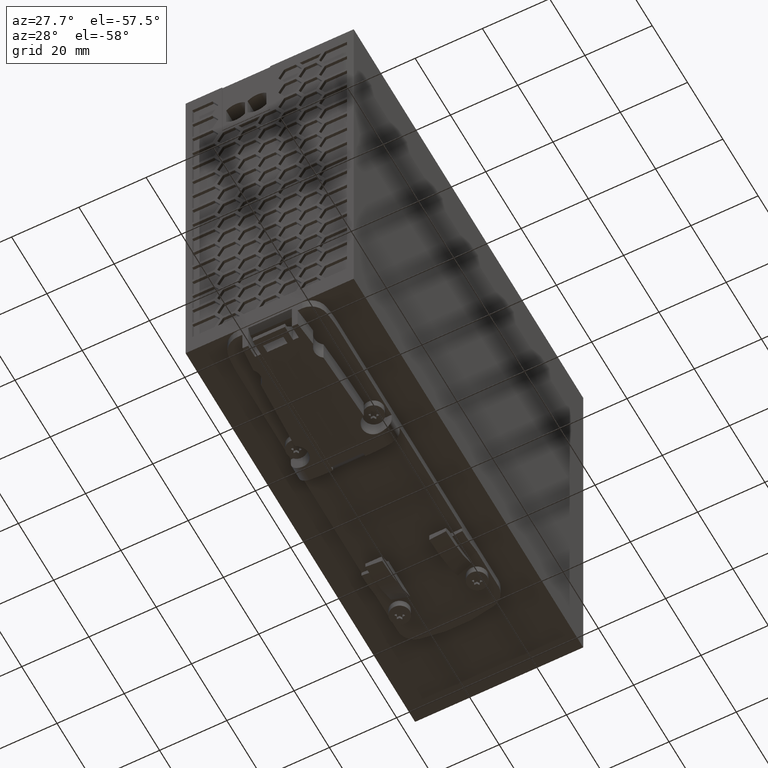
[diagram: clean part render]
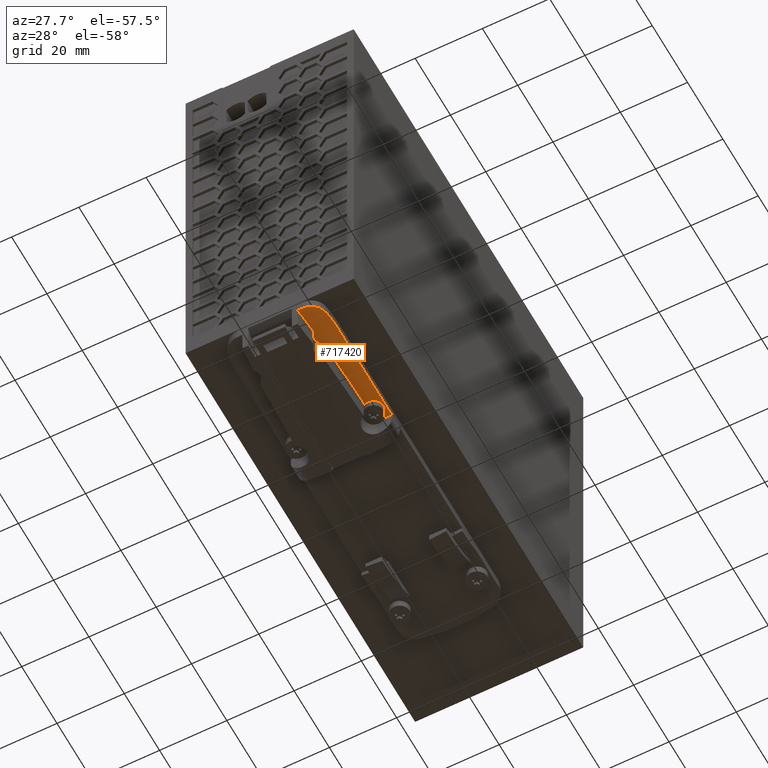
[diagram: same view with one face highlighted and labeled with its STEP entity id]
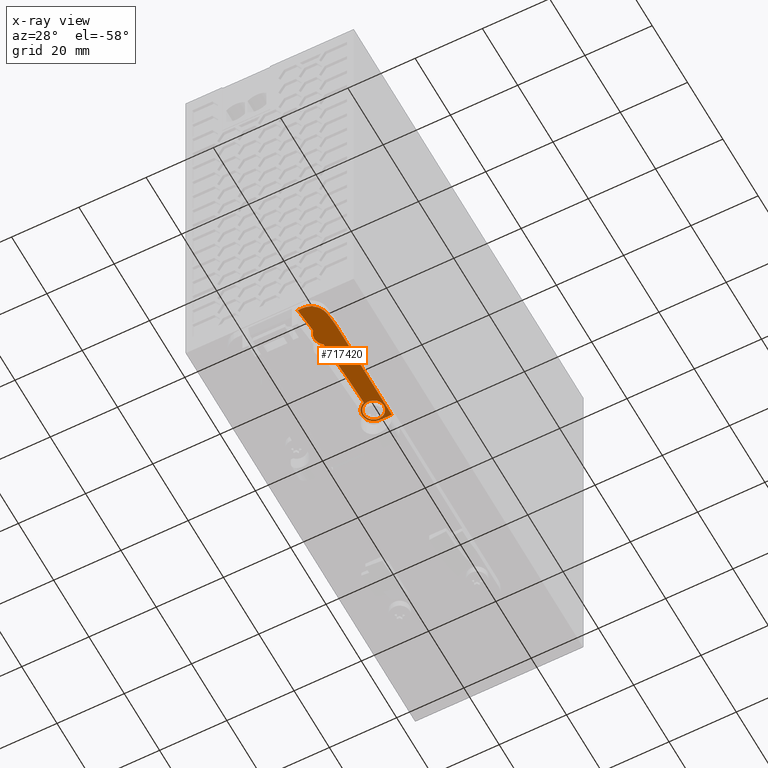
[diagram: x-ray of the same camera — body ghosted, the highlighted face saturated]
A machine part, auxiliary view. The second image highlights one B-rep face of the part: STEP entity #717420.
The next image is the same camera in x-ray: the body ghosted, the highlighted face saturated — about 0% of this face is hidden behind the body in this view.
In plain terms, the highlighted planar face has unit normal (-0, 0, -1).
Its self-contained STEP definition (entity closure, byte-faithful):
#569960=CARTESIAN_POINT('',(-373.198675095112,41.0433434100267,
6.59999999999972));
#569970=DIRECTION('',(9.95682444457783E-60,-3.26265223399926E-55,-1.));
#569980=DIRECTION('',(-1.,1.38913403349705E-19,-9.95682444457783E-60));
#569990=AXIS2_PLACEMENT_3D('',#569960,#569970,#569980);
#570000=CIRCLE('',#569990,401.499999999923);
#570010=CARTESIAN_POINT('',(26.9137756270187,7.69252967079017,
6.59999999999972));
#570020=VERTEX_POINT('',#570010);
#570030=CARTESIAN_POINT('',(26.218370185678,0.198834120503079,
6.59999999999972));
#570040=VERTEX_POINT('',#570030);
#570050=EDGE_CURVE('',#570020,#570040,#570000,.T.);
#627300=CARTESIAN_POINT('',(0.00178708709996158,40.5484737296605,
6.59999999999972));
#627310=DIRECTION('',(-0.999999999905512,-1.37468202397841E-5,
-5.47171506706521E-60));
#627320=VECTOR('',#627310,1.);
#627330=LINE('',#627300,#627320);
#627340=CARTESIAN_POINT('',(33.001331739842,40.5489273684688,
6.59999999999972));
#627350=VERTEX_POINT('',#627340);
#627360=CARTESIAN_POINT('',(29.501069086508,40.5488792509873,
6.59999999999972));
#627370=VERTEX_POINT('',#627360);
#627380=EDGE_CURVE('',#627350,#627370,#627330,.T.);
#628420=CARTESIAN_POINT('',(33.0001130694827,129.2,6.59999999999972));
#628430=DIRECTION('',(1.37468202358229E-5,-0.999999999905513,
3.26265223505973E-55));
#628440=VECTOR('',#628430,1.);
#628450=LINE('',#628420,#628440);
#628460=CARTESIAN_POINT('',(33.0017489558362,10.1989273713365,
6.59999999999972));
#628470=VERTEX_POINT('',#628460);
#628480=EDGE_CURVE('',#627350,#628470,#628450,.T.);
#636890=CARTESIAN_POINT('',(27.6428338418213,5.19885370282137,
6.59999999999972));
#636900=DIRECTION('',(9.95682444457783E-60,-3.26265223399926E-55,-1.));
#636910=DIRECTION('',(-1.,1.38913403349705E-19,-9.95682444457783E-60));
#636920=AXIS2_PLACEMENT_3D('',#636890,#636900,#636910);
#636930=CIRCLE('',#636920,4.99999999999991);
#636940=CARTESIAN_POINT('',(32.5915602535649,4.4846360177205,
6.59999999999972));
#636950=VERTEX_POINT('',#636940);
#636960=CARTESIAN_POINT('',(27.6429025759224,0.198853703293764,
6.59999999999972));
#636970=VERTEX_POINT('',#636960);
#636980=EDGE_CURVE('',#636950,#636970,#636930,.T.);
#660620=CARTESIAN_POINT('',(-6.99825104038126,10.1983774985268,
6.59999999999972));
#660630=DIRECTION('',(9.95682444457783E-60,-3.26265223399926E-55,-1.));
#660640=DIRECTION('',(-1.,1.38913403349705E-19,-9.95682444457783E-60));
#660650=AXIS2_PLACEMENT_3D('',#660620,#660630,#660640);
#660660=CIRCLE('',#660650,39.9999999999969);
#660670=EDGE_CURVE('',#628470,#636950,#660660,.T.);
#671980=CARTESIAN_POINT('',(0.00178708709996157,0.198473725847947,
6.59999999999972));
#671990=DIRECTION('',(0.999999999905513,1.37468202386569E-5,
5.47171506743298E-60));
#672000=VECTOR('',#671990,1.);
#672010=LINE('',#671980,#672000);
#672020=EDGE_CURVE('',#570040,#636970,#672010,.T.);
#684790=CARTESIAN_POINT('',(29.5013798540436,37.0488792549287,
6.59999999999972));
#684800=DIRECTION('',(9.95682444457783E-60,-3.26265223399926E-55,-1.));
#684810=DIRECTION('',(-1.,1.38913403349705E-19,-9.95682444457783E-60));
#684820=AXIS2_PLACEMENT_3D('',#684790,#684800,#684810);
#684830=CIRCLE('',#684820,3.49999999999999);
#684840=CARTESIAN_POINT('',(28.2357244112665,33.7857341003012,
6.59999999999972));
#684850=VERTEX_POINT('',#684840);
#684860=EDGE_CURVE('',#684850,#627370,#684830,.T.);
#700070=CARTESIAN_POINT('',(27.304840790004,12.7735050022907,
6.59999999999972));
#700080=VERTEX_POINT('',#700070);
#700110=CARTESIAN_POINT('',(-373.198675095222,41.0433434100426,
6.59999999999972));
#700120=DIRECTION('',(9.95682444457783E-60,-3.26265223399926E-55,-1.));
#700130=DIRECTION('',(-1.,1.38913403349705E-19,-9.95682444457783E-60));
#700140=AXIS2_PLACEMENT_3D('',#700110,#700120,#700130);
#700150=CIRCLE('',#700140,401.500000000035);
#700160=EDGE_CURVE('',#684850,#700080,#700150,.T.);
#709100=CARTESIAN_POINT('',(26.5013798540436,37.0488792549287,
6.59999999999972));
#709110=VERTEX_POINT('',#709100);
#709190=CARTESIAN_POINT('',(32.5013798540435,37.0488792549287,
6.59999999999972));
#709200=VERTEX_POINT('',#709190);
#709230=CARTESIAN_POINT('',(29.5013798540435,37.0488792549287,
6.59999999999972));
#709240=DIRECTION('',(9.95682444457783E-60,-3.26265223399926E-55,-1.));
#709250=DIRECTION('',(-1.,1.38913403349705E-19,-9.95682444457783E-60));
#709260=AXIS2_PLACEMENT_3D('',#709230,#709240,#709250);
#709270=CIRCLE('',#709260,2.99999999999998);
#709280=EDGE_CURVE('',#709110,#709200,#709270,.T.);
#717150=CARTESIAN_POINT('',(33.860805814384,-3.83617520429354,
6.59999999999972));
#717160=DIRECTION('',(9.95682444457778E-60,-3.26265223399926E-55,-1.));
#717170=DIRECTION('',(-1.,1.38913403349705E-19,-9.95682444457783E-60));
#717180=AXIS2_PLACEMENT_3D('',#717150,#717160,#717170);
#717190=PLANE('',#717180);
#717200=ORIENTED_EDGE('',*,*,#684860,.T.);
#717210=ORIENTED_EDGE('',*,*,#700160,.F.);
#717220=CARTESIAN_POINT('',(29.5017510181899,10.0488792574798,
6.59999999999972));
#717230=DIRECTION('',(9.95682444457783E-60,-3.26265223399926E-55,-1.));
#717240=DIRECTION('',(-1.,1.38913403349705E-19,-9.95682444457783E-60));
#717250=AXIS2_PLACEMENT_3D('',#717220,#717230,#717240);
#717260=CIRCLE('',#717250,3.49999999999993);
#717270=EDGE_CURVE('',#570020,#700080,#717260,.T.);
#717280=ORIENTED_EDGE('',*,*,#717270,.T.);
#717290=ORIENTED_EDGE('',*,*,#570050,.F.);
#717300=ORIENTED_EDGE('',*,*,#672020,.F.);
#717310=ORIENTED_EDGE('',*,*,#636980,.T.);
#717320=ORIENTED_EDGE('',*,*,#660670,.T.);
#717330=ORIENTED_EDGE('',*,*,#628480,.T.);
#717340=ORIENTED_EDGE('',*,*,#627380,.F.);
#717350=EDGE_LOOP('',(#717340,#717330,#717320,#717310,#717300,#717290,
#717280,#717210,#717200));
#717360=FACE_OUTER_BOUND('',#717350,.T.);
#717370=EDGE_CURVE('',#709200,#709110,#709270,.T.);
#717380=ORIENTED_EDGE('',*,*,#717370,.F.);
#717390=ORIENTED_EDGE('',*,*,#709280,.F.);
#717400=EDGE_LOOP('',(#717390,#717380));
#717410=FACE_BOUND('',#717400,.T.);
#717420=ADVANCED_FACE('',(#717360,#717410),#717190,.T.);